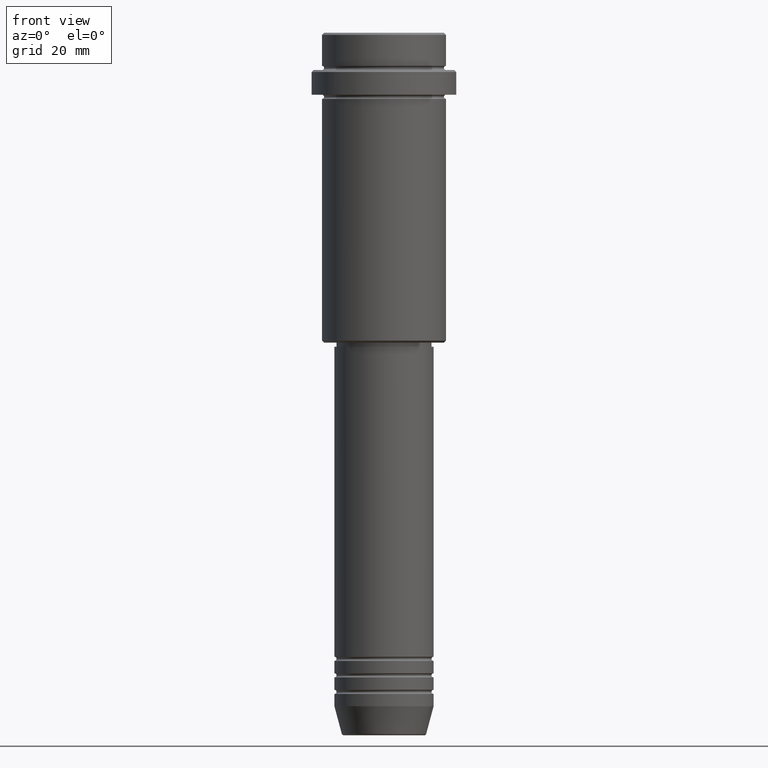
[diagram: clean part render]
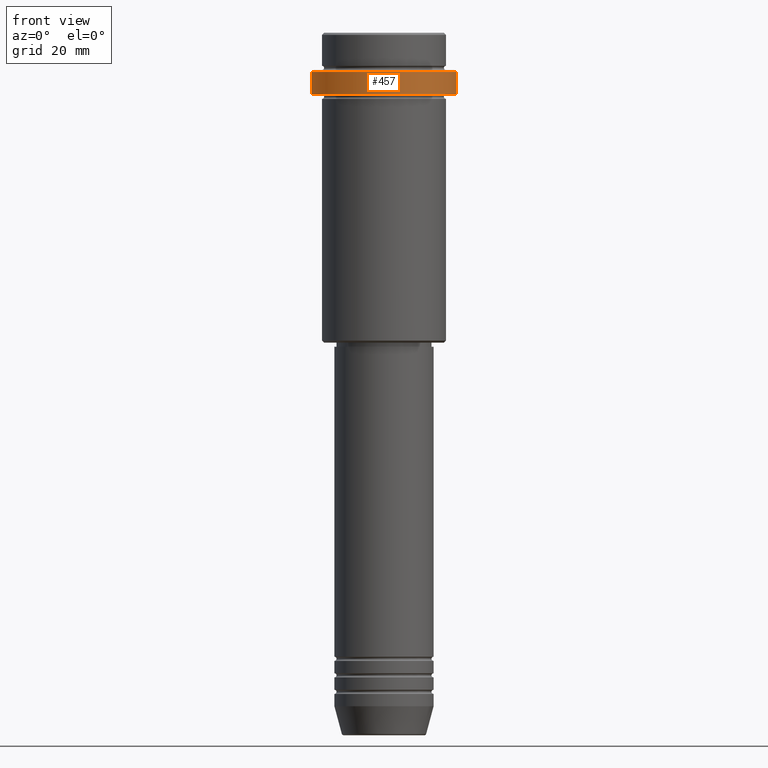
[diagram: same view with one face highlighted and labeled with its STEP entity id]
A machine part, front view. The second image highlights one B-rep face of the part: STEP entity #457.
In plain terms, the highlighted cylindrical surface (partial cylindrical patch) has radius 17.5 mm, axis along (-0, -0, 1).
Its self-contained STEP definition (entity closure, byte-faithful):
#44 = AXIS2_PLACEMENT_3D ( 'NONE', #493, #924, #791 ) ;
#52 = ORIENTED_EDGE ( 'NONE', *, *, #1198, .T. ) ;
#78 = VERTEX_POINT ( 'NONE', #538 ) ;
#123 = LINE ( 'NONE', #999, #932 ) ;
#150 = EDGE_CURVE ( 'NONE', #997, #980, #1310, .T. ) ;
#164 = VECTOR ( 'NONE', #368, 1000.000000000000000 ) ;
#198 = CARTESIAN_POINT ( 'NONE',  ( 17.50000000000000000, 0.000000000000000000, -9.500000000000000000 ) ) ;
#255 = DIRECTION ( 'NONE',  ( 1.000000000000000000, 0.000000000000000000, 0.000000000000000000 ) ) ;
#309 = CIRCLE ( 'NONE', #801, 17.50000000000000000 ) ;
#357 = CARTESIAN_POINT ( 'NONE',  ( 17.50000000000000000, 0.000000000000000000, 0.000000000000000000 ) ) ;
#358 = VERTEX_POINT ( 'NONE', #1338 ) ;
#368 = DIRECTION ( 'NONE',  ( -0.000000000000000000, -0.000000000000000000, 1.000000000000000000 ) ) ;
#380 = CARTESIAN_POINT ( 'NONE',  ( 0.000000000000000000, 0.000000000000000000, -9.500000000000000000 ) ) ;
#430 = DIRECTION ( 'NONE',  ( -0.000000000000000000, -0.000000000000000000, 1.000000000000000000 ) ) ;
#457 = ADVANCED_FACE ( 'NONE', ( #1168 ), #948, .T. ) ;
#486 = EDGE_LOOP ( 'NONE', ( #1080, #851, #543, #52 ) ) ;
#493 = CARTESIAN_POINT ( 'NONE',  ( 0.000000000000000000, 0.000000000000000000, -15.00000000000000000 ) ) ;
#538 = CARTESIAN_POINT ( 'NONE',  ( -17.50000000000000000, 2.143131898507868248E-15, -9.500000000000000000 ) ) ;
#543 = ORIENTED_EDGE ( 'NONE', *, *, #150, .T. ) ;
#590 = DIRECTION ( 'NONE',  ( 0.000000000000000000, 0.000000000000000000, -1.000000000000000000 ) ) ;
#648 = EDGE_CURVE ( 'NONE', #358, #78, #123, .T. ) ;
#651 = DIRECTION ( 'NONE',  ( -0.000000000000000000, -0.000000000000000000, 1.000000000000000000 ) ) ;
#731 = CARTESIAN_POINT ( 'NONE',  ( 0.000000000000000000, 0.000000000000000000, 0.000000000000000000 ) ) ;
#791 = DIRECTION ( 'NONE',  ( 1.000000000000000000, 0.000000000000000000, 0.000000000000000000 ) ) ;
#801 = AXIS2_PLACEMENT_3D ( 'NONE', #380, #590, #255 ) ;
#851 = ORIENTED_EDGE ( 'NONE', *, *, #1130, .T. ) ;
#924 = DIRECTION ( 'NONE',  ( -0.000000000000000000, -0.000000000000000000, 1.000000000000000000 ) ) ;
#932 = VECTOR ( 'NONE', #651, 1000.000000000000000 ) ;
#948 = CYLINDRICAL_SURFACE ( 'NONE', #1070, 17.50000000000000000 ) ;
#980 = VERTEX_POINT ( 'NONE', #198 ) ;
#997 = VERTEX_POINT ( 'NONE', #1094 ) ;
#999 = CARTESIAN_POINT ( 'NONE',  ( -17.50000000000000000, 2.143131898507868248E-15, 0.000000000000000000 ) ) ;
#1008 = CIRCLE ( 'NONE', #44, 17.50000000000000000 ) ;
#1070 = AXIS2_PLACEMENT_3D ( 'NONE', #731, #430, #1266 ) ;
#1080 = ORIENTED_EDGE ( 'NONE', *, *, #648, .F. ) ;
#1094 = CARTESIAN_POINT ( 'NONE',  ( 17.50000000000000000, 0.000000000000000000, -15.00000000000000000 ) ) ;
#1130 = EDGE_CURVE ( 'NONE', #358, #997, #1008, .T. ) ;
#1168 = FACE_OUTER_BOUND ( 'NONE', #486, .T. ) ;
#1198 = EDGE_CURVE ( 'NONE', #980, #78, #309, .T. ) ;
#1266 = DIRECTION ( 'NONE',  ( 1.000000000000000000, 0.000000000000000000, 0.000000000000000000 ) ) ;
#1310 = LINE ( 'NONE', #357, #164 ) ;
#1338 = CARTESIAN_POINT ( 'NONE',  ( -17.50000000000000000, 2.143131898507868248E-15, -15.00000000000000000 ) ) ;